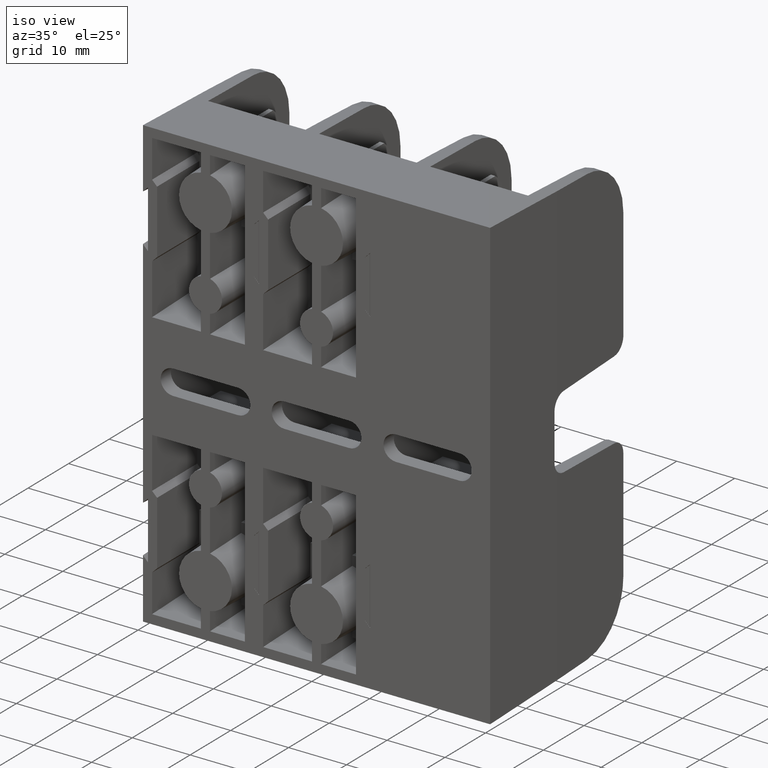
[diagram: clean part render]
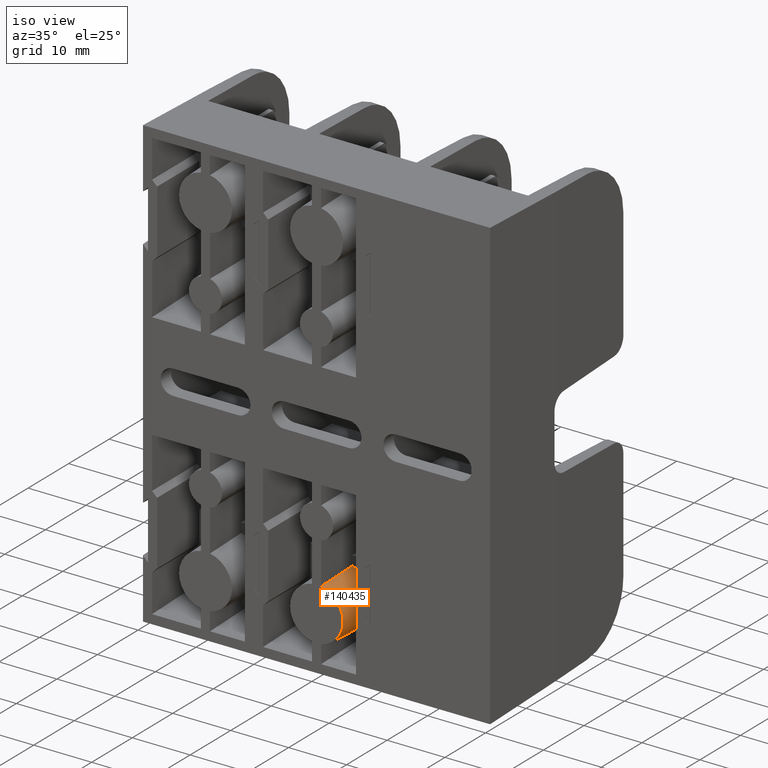
[diagram: same view with one face highlighted and labeled with its STEP entity id]
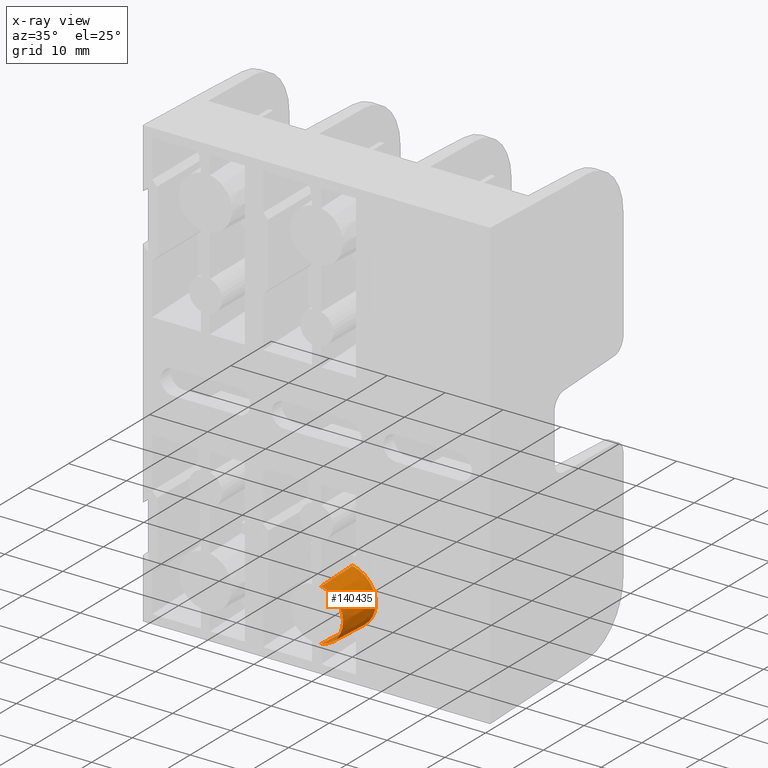
[diagram: x-ray of the same camera — body ghosted, the highlighted face saturated]
A machine part, iso view. The second image highlights one B-rep face of the part: STEP entity #140435.
The next image is the same camera in x-ray: the body ghosted, the highlighted face saturated — about 0% of this face is hidden behind the body in this view.
In plain terms, the highlighted conical surface has half-angle 2 deg.
Its self-contained STEP definition (entity closure, byte-faithful):
#829 = CARTESIAN_POINT ( 'NONE',  ( -0.7239999999999997500, 0.1263747413773945400, -0.9803394772957407800 ) ) ;
#1211 = EDGE_CURVE ( 'NONE', #107602, #54194, #142029, .T. ) ;
#3401 = CARTESIAN_POINT ( 'NONE',  ( -0.7239999999999997500, 0.03806223356094271000, -1.340530435588053400 ) ) ;
#4202 = B_SPLINE_CURVE_WITH_KNOTS ( 'NONE', 3,
 ( #22740, #56289, #133819, #67447, #829, #78559, #12020 ),
 .UNSPECIFIED., .F., .F.,
 ( 4, 3, 4 ),
 ( 0.007927248564443659800, 0.008894636489400500200, 0.01562827509499878400 ),
 .UNSPECIFIED. ) ;
#6749 = EDGE_LOOP ( 'NONE', ( #73109, #22598, #107185, #102318 ) ) ;
#12020 = CARTESIAN_POINT ( 'NONE',  ( -0.7239999999999997500, 0.3029999999999997700, -0.9740861613002427300 ) ) ;
#13618 = CARTESIAN_POINT ( 'NONE',  ( -0.7239999999999997500, 0.3029999999999997700, -1.349913838699757100 ) ) ;
#14567 = CARTESIAN_POINT ( 'NONE',  ( -0.7239999999999997500, 0.01268740939949781300, -1.339631018241626000 ) ) ;
#20113 = FACE_OUTER_BOUND ( 'NONE', #6749, .T. ) ;
#22598 = ORIENTED_EDGE ( 'NONE', *, *, #133660, .F. ) ;
#22740 = CARTESIAN_POINT ( 'NONE',  ( -0.7239999999999997500, 1.824618288959702600E-016, -0.9848187660671823300 ) ) ;
#27797 = CARTESIAN_POINT ( 'NONE',  ( -0.7239999999999997500, -3.413435356285285000E-017, -1.339181233932817500 ) ) ;
#36510 = CARTESIAN_POINT ( 'NONE',  ( -0.7239999999999997500, 0.2146873342896268900, -1.346788209592870500 ) ) ;
#40097 = CARTESIAN_POINT ( 'NONE',  ( -0.7550000000000000000, 2.150094935466907300E-016, -1.161999999999999900 ) ) ;
#44613 = AXIS2_PLACEMENT_3D ( 'NONE', #96069, #129428, #52382 ) ;
#51213 = DIRECTION ( 'NONE',  ( 0.0000000000000000000, 1.836970198721028900E-016, -1.000000000000000000 ) ) ;
#52382 = DIRECTION ( 'NONE',  ( 0.0000000000000000000, -1.876658671499838000E-016, 1.000000000000000000 ) ) ;
#54194 = VERTEX_POINT ( 'NONE', #27797 ) ;
#56289 = CARTESIAN_POINT ( 'NONE',  ( -0.7239999999999997500, 0.01268740939949795100, -0.9843689817583740600 ) ) ;
#61077 = CARTESIAN_POINT ( 'NONE',  ( -0.7550000000000000000, 0.3029999999999997700, -1.161999999999999900 ) ) ;
#66168 = VERTEX_POINT ( 'NONE', #106748 ) ;
#67447 = CARTESIAN_POINT ( 'NONE',  ( -0.7239999999999997500, 0.03806223356094271000, -0.9834695644119463300 ) ) ;
#69998 = CARTESIAN_POINT ( 'NONE',  ( -0.7239999999999997500, 0.1263747413773945400, -1.343660522704259100 ) ) ;
#72230 = DIRECTION ( 'NONE',  ( 0.0000000000000000000, 0.0000000000000000000, -1.000000000000000000 ) ) ;
#73109 = ORIENTED_EDGE ( 'NONE', *, *, #85840, .F. ) ;
#78559 = CARTESIAN_POINT ( 'NONE',  ( -0.7239999999999997500, 0.2146873342896268900, -0.9772117904071294700 ) ) ;
#81131 = CARTESIAN_POINT ( 'NONE',  ( -0.7239999999999997500, 0.02537482060018490800, -1.340080751745658100 ) ) ;
#85498 = CIRCLE ( 'NONE', #134467, 0.1904536971940382400 ) ;
#85840 = EDGE_CURVE ( 'NONE', #66168, #54194, #128778, .T. ) ;
#86307 = EDGE_CURVE ( 'NONE', #107602, #103751, #4202, .T. ) ;
#92273 = CARTESIAN_POINT ( 'NONE',  ( -0.7239999999999997500, -3.413435356285285000E-017, -1.339181233932817500 ) ) ;
#94263 = AXIS2_PLACEMENT_3D ( 'NONE', #40097, #117646, #51213 ) ;
#96069 = CARTESIAN_POINT ( 'NONE',  ( -0.7550000000000000000, 0.05983623120444511700, -1.161999999999999900 ) ) ;
#100449 = CARTESIAN_POINT ( 'NONE',  ( -0.7239999999999997500, 1.824618288959702600E-016, -0.9848187660671823300 ) ) ;
#102318 = ORIENTED_EDGE ( 'NONE', *, *, #1211, .T. ) ;
#103751 = VERTEX_POINT ( 'NONE', #103809 ) ;
#103809 = CARTESIAN_POINT ( 'NONE',  ( -0.7239999999999997500, 0.3029999999999997700, -0.9740861613002427300 ) ) ;
#106748 = CARTESIAN_POINT ( 'NONE',  ( -0.7239999999999997500, 0.3029999999999997700, -1.349913838699757100 ) ) ;
#107185 = ORIENTED_EDGE ( 'NONE', *, *, #86307, .F. ) ;
#107602 = VERTEX_POINT ( 'NONE', #100449 ) ;
#117646 = DIRECTION ( 'NONE',  ( -0.0000000000000000000, 1.000000000000000000, 1.836970198721029400E-016 ) ) ;
#120843 = CONICAL_SURFACE ( 'NONE', #44613, 0.1819622312751839100, 0.03490658503988666700 ) ;
#128778 = B_SPLINE_CURVE_WITH_KNOTS ( 'NONE', 3,
 ( #13618, #36510, #69998, #3401, #81131, #14567, #92273 ),
 .UNSPECIFIED., .F., .F.,
 ( 4, 3, 4 ),
 ( 0.01605104643793612800, 0.02278468504222909400, 0.02375207296699841100 ),
 .UNSPECIFIED. ) ;
#129428 = DIRECTION ( 'NONE',  ( -0.0000000000000000000, 1.000000000000000000, 1.836970198721029400E-016 ) ) ;
#133660 = EDGE_CURVE ( 'NONE', #103751, #66168, #85498, .T. ) ;
#133819 = CARTESIAN_POINT ( 'NONE',  ( -0.7239999999999997500, 0.02537482060018497400, -0.9839192482543414100 ) ) ;
#134467 = AXIS2_PLACEMENT_3D ( 'NONE', #61077, #138685, #72230 ) ;
#138685 = DIRECTION ( 'NONE',  ( -0.0000000000000000000, 1.000000000000000000, -0.0000000000000000000 ) ) ;
#140435 = ADVANCED_FACE ( 'NONE', ( #20113 ), #120843, .T. ) ;
#142029 = CIRCLE ( 'NONE', #94263, 0.1798727040380386800 ) ;